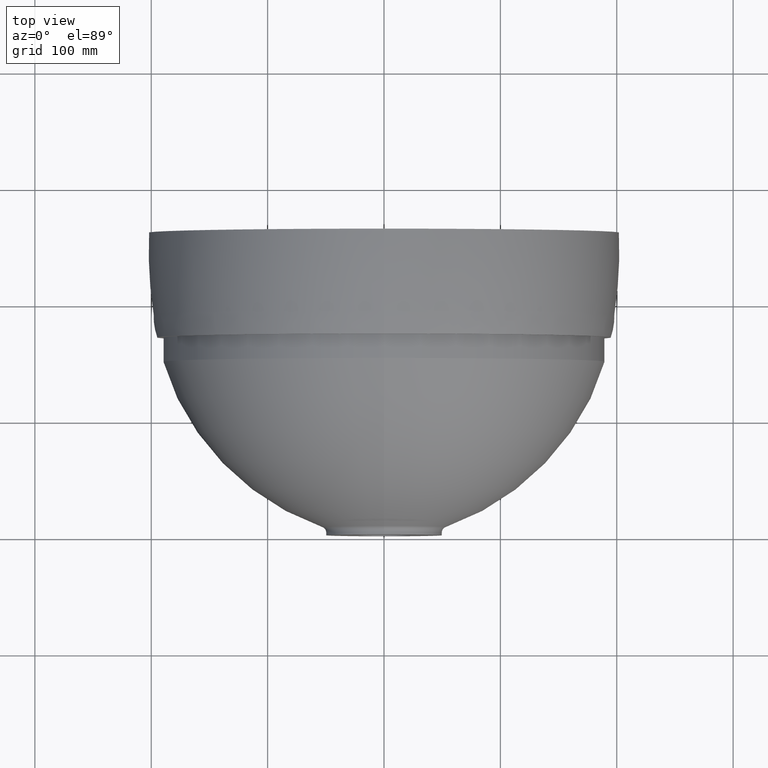
[diagram: clean part render]
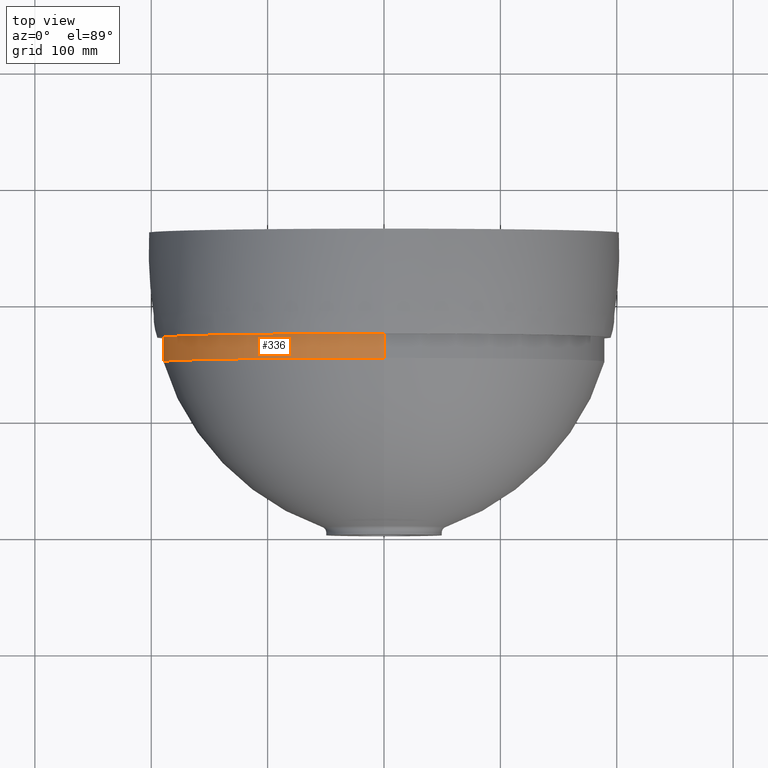
[diagram: same view with one face highlighted and labeled with its STEP entity id]
A machine part, top view. The second image highlights one B-rep face of the part: STEP entity #336.
In plain terms, the highlighted cylindrical surface (partial cylindrical patch) has radius 190 mm, axis along (-0, -1, -0).
Its self-contained STEP definition (entity closure, byte-faithful):
#6 = AXIS2_PLACEMENT_3D ( 'NONE', #523, #210, #426 ) ;
#10 = VERTEX_POINT ( 'NONE', #530 ) ;
#19 = ORIENTED_EDGE ( 'NONE', *, *, #463, .T. ) ;
#48 = LINE ( 'NONE', #125, #468 ) ;
#68 = DIRECTION ( 'NONE',  ( 0.0000000000000000000, 0.0000000000000000000, -1.000000000000000000 ) ) ;
#89 = DIRECTION ( 'NONE',  ( -0.0000000000000000000, -1.000000000000000000, -0.0000000000000000000 ) ) ;
#125 = CARTESIAN_POINT ( 'NONE',  ( 0.0000000000000000000, -36.83810861832611700, -190.0000000000000000 ) ) ;
#133 = CARTESIAN_POINT ( 'NONE',  ( 2.326828918379971300E-014, 170.0000000000000000, 190.0000000000000000 ) ) ;
#195 = DIRECTION ( 'NONE',  ( -0.0000000000000000000, -1.000000000000000000, -0.0000000000000000000 ) ) ;
#203 = AXIS2_PLACEMENT_3D ( 'NONE', #255, #89, #556 ) ;
#205 = EDGE_LOOP ( 'NONE', ( #345, #386, #19, #515 ) ) ;
#210 = DIRECTION ( 'NONE',  ( -0.0000000000000000000, -1.000000000000000000, -0.0000000000000000000 ) ) ;
#255 = CARTESIAN_POINT ( 'NONE',  ( 0.0000000000000000000, -36.83810861832611700, 0.0000000000000000000 ) ) ;
#271 = EDGE_CURVE ( 'NONE', #562, #412, #422, .T. ) ;
#308 = CARTESIAN_POINT ( 'NONE',  ( 0.0000000000000000000, 149.1182631843105400, -189.9999999999999700 ) ) ;
#319 = CARTESIAN_POINT ( 'NONE',  ( 2.326828918379971300E-014, -36.83810861832611700, 190.0000000000000000 ) ) ;
#331 = EDGE_CURVE ( 'NONE', #461, #562, #615, .T. ) ;
#336 = ADVANCED_FACE ( 'NONE', ( #378 ), #677, .T. ) ;
#340 = DIRECTION ( 'NONE',  ( -0.0000000000000000000, -1.000000000000000000, -0.0000000000000000000 ) ) ;
#345 = ORIENTED_EDGE ( 'NONE', *, *, #331, .F. ) ;
#378 = FACE_OUTER_BOUND ( 'NONE', #205, .T. ) ;
#386 = ORIENTED_EDGE ( 'NONE', *, *, #470, .T. ) ;
#396 = CIRCLE ( 'NONE', #488, 190.0000000000000000 ) ;
#412 = VERTEX_POINT ( 'NONE', #308 ) ;
#422 = CIRCLE ( 'NONE', #6, 189.9999999999999700 ) ;
#426 = DIRECTION ( 'NONE',  ( 0.0000000000000000000, 0.0000000000000000000, -1.000000000000000000 ) ) ;
#461 = VERTEX_POINT ( 'NONE', #133 ) ;
#463 = EDGE_CURVE ( 'NONE', #10, #412, #48, .T. ) ;
#468 = VECTOR ( 'NONE', #512, 1000.000000000000000 ) ;
#470 = EDGE_CURVE ( 'NONE', #461, #10, #396, .T. ) ;
#488 = AXIS2_PLACEMENT_3D ( 'NONE', #501, #340, #68 ) ;
#501 = CARTESIAN_POINT ( 'NONE',  ( 0.0000000000000000000, 170.0000000000000000, 0.0000000000000000000 ) ) ;
#512 = DIRECTION ( 'NONE',  ( -0.0000000000000000000, -1.000000000000000000, -0.0000000000000000000 ) ) ;
#515 = ORIENTED_EDGE ( 'NONE', *, *, #271, .F. ) ;
#523 = CARTESIAN_POINT ( 'NONE',  ( 0.0000000000000000000, 149.1182631843105400, 0.0000000000000000000 ) ) ;
#530 = CARTESIAN_POINT ( 'NONE',  ( 0.0000000000000000000, 170.0000000000000000, -190.0000000000000000 ) ) ;
#535 = CARTESIAN_POINT ( 'NONE',  ( 2.326828918379971000E-014, 149.1182631843105400, 189.9999999999999700 ) ) ;
#556 = DIRECTION ( 'NONE',  ( 0.0000000000000000000, 0.0000000000000000000, -1.000000000000000000 ) ) ;
#562 = VERTEX_POINT ( 'NONE', #535 ) ;
#613 = VECTOR ( 'NONE', #195, 1000.000000000000000 ) ;
#615 = LINE ( 'NONE', #319, #613 ) ;
#677 = CYLINDRICAL_SURFACE ( 'NONE', #203, 190.0000000000000000 ) ;